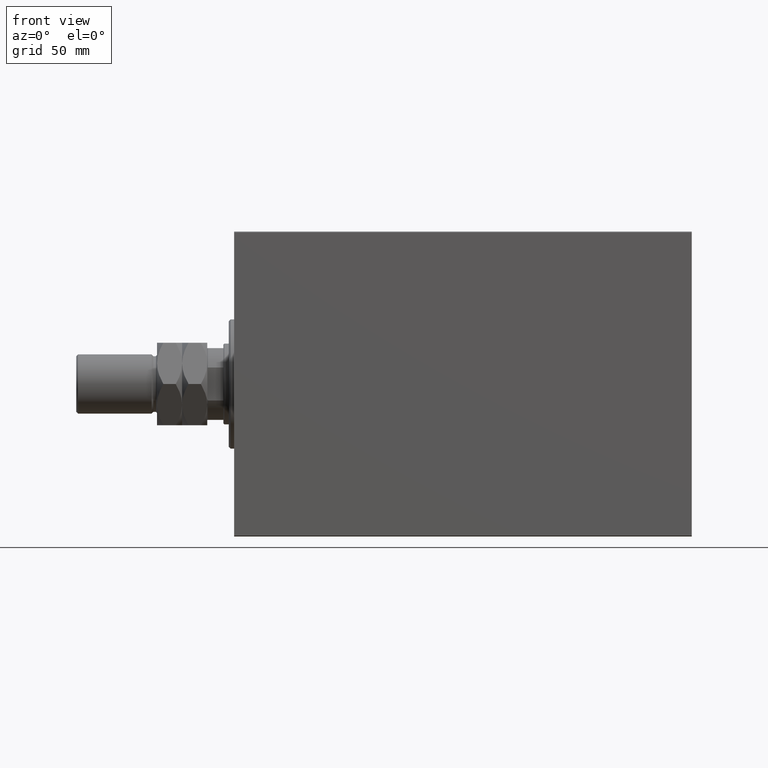
[diagram: clean part render]
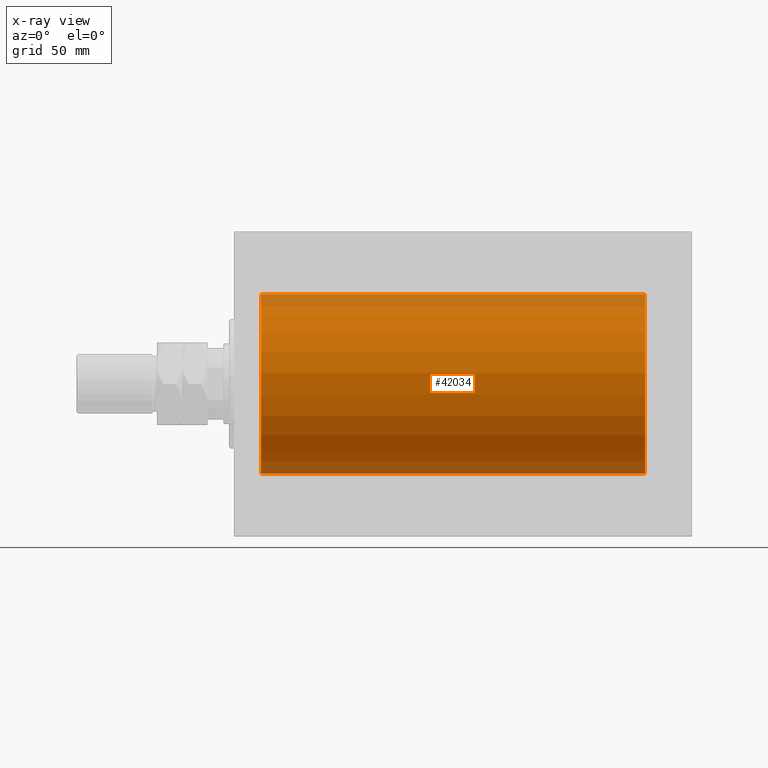
[diagram: x-ray — body ghosted, one internal face saturated and labeled with its STEP entity id]
A machine part, front view, then the same camera in x-ray: the body is ghosted and one INTERNAL B-rep face — a face not visible from any outside direction — is saturated and labeled: STEP entity #42034.
In plain terms, the highlighted cylindrical surface (partial cylindrical patch) has radius 50 mm, axis along (-1, -0, -0).
Its self-contained STEP definition (entity closure, byte-faithful):
#1944 = EDGE_CURVE ( 'NONE', #35795, #15103, #25239, .T. ) ;
#5059 = VERTEX_POINT ( 'NONE', #43085 ) ;
#9493 = CARTESIAN_POINT ( 'NONE',  ( 14.99999999999998579, 6.123233995736764507E-15, -50.00000000000000000 ) ) ;
#9695 = AXIS2_PLACEMENT_3D ( 'NONE', #18357, #21382, #11409 ) ;
#10321 = CARTESIAN_POINT ( 'NONE',  ( 229.0000000000000000, 0.000000000000000000, 50.00000000000000000 ) ) ;
#10644 = ORIENTED_EDGE ( 'NONE', *, *, #1944, .T. ) ;
#11409 = DIRECTION ( 'NONE',  ( 0.000000000000000000, 0.000000000000000000, 1.000000000000000000 ) ) ;
#11842 = CARTESIAN_POINT ( 'NONE',  ( 14.99999999999998579, 0.000000000000000000, 0.000000000000000000 ) ) ;
#14362 = FACE_OUTER_BOUND ( 'NONE', #45243, .T. ) ;
#15103 = VERTEX_POINT ( 'NONE', #44641 ) ;
#16175 = CARTESIAN_POINT ( 'NONE',  ( 229.0000000000000000, 6.123233995736764507E-15, -50.00000000000000000 ) ) ;
#18357 = CARTESIAN_POINT ( 'NONE',  ( 229.0000000000000000, 0.000000000000000000, 0.000000000000000000 ) ) ;
#20117 = EDGE_CURVE ( 'NONE', #21975, #15103, #41843, .T. ) ;
#20456 = VECTOR ( 'NONE', #34434, 1000.000000000000000 ) ;
#21322 = DIRECTION ( 'NONE',  ( 0.000000000000000000, 0.000000000000000000, 1.000000000000000000 ) ) ;
#21382 = DIRECTION ( 'NONE',  ( -1.000000000000000000, 0.000000000000000000, 0.000000000000000000 ) ) ;
#21975 = VERTEX_POINT ( 'NONE', #26855 ) ;
#23024 = AXIS2_PLACEMENT_3D ( 'NONE', #42640, #31979, #21322 ) ;
#23136 = DIRECTION ( 'NONE',  ( -1.000000000000000000, -0.000000000000000000, -0.000000000000000000 ) ) ;
#23758 = CIRCLE ( 'NONE', #9695, 50.00000000000000000 ) ;
#25239 = CIRCLE ( 'NONE', #28944, 50.00000000000000000 ) ;
#26855 = CARTESIAN_POINT ( 'NONE',  ( 229.0000000000000000, 0.000000000000000000, 50.00000000000000000 ) ) ;
#28944 = AXIS2_PLACEMENT_3D ( 'NONE', #11842, #32954, #44288 ) ;
#29873 = LINE ( 'NONE', #16175, #32498 ) ;
#30364 = ORIENTED_EDGE ( 'NONE', *, *, #20117, .F. ) ;
#30466 = ORIENTED_EDGE ( 'NONE', *, *, #31993, .T. ) ;
#31979 = DIRECTION ( 'NONE',  ( -1.000000000000000000, -0.000000000000000000, -0.000000000000000000 ) ) ;
#31993 = EDGE_CURVE ( 'NONE', #5059, #35795, #29873, .T. ) ;
#32498 = VECTOR ( 'NONE', #23136, 1000.000000000000000 ) ;
#32954 = DIRECTION ( 'NONE',  ( -1.000000000000000000, 0.000000000000000000, 0.000000000000000000 ) ) ;
#34434 = DIRECTION ( 'NONE',  ( -1.000000000000000000, -0.000000000000000000, -0.000000000000000000 ) ) ;
#35449 = CYLINDRICAL_SURFACE ( 'NONE', #23024, 50.00000000000000000 ) ;
#35795 = VERTEX_POINT ( 'NONE', #9493 ) ;
#35895 = ORIENTED_EDGE ( 'NONE', *, *, #42553, .F. ) ;
#41843 = LINE ( 'NONE', #10321, #20456 ) ;
#42034 = ADVANCED_FACE ( 'NONE', ( #14362 ), #35449, .F. ) ;
#42553 = EDGE_CURVE ( 'NONE', #5059, #21975, #23758, .T. ) ;
#42640 = CARTESIAN_POINT ( 'NONE',  ( 229.0000000000000000, 0.000000000000000000, 0.000000000000000000 ) ) ;
#43085 = CARTESIAN_POINT ( 'NONE',  ( 229.0000000000000000, 6.123233995736764507E-15, -50.00000000000000000 ) ) ;
#44288 = DIRECTION ( 'NONE',  ( 0.000000000000000000, 0.000000000000000000, 1.000000000000000000 ) ) ;
#44641 = CARTESIAN_POINT ( 'NONE',  ( 14.99999999999998579, 0.000000000000000000, 50.00000000000000000 ) ) ;
#45243 = EDGE_LOOP ( 'NONE', ( #35895, #30466, #10644, #30364 ) ) ;